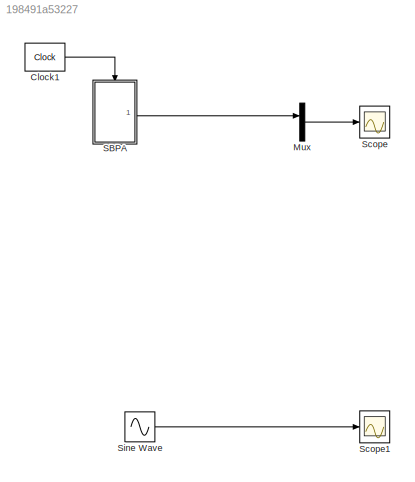
MODEL slx_198491a53227
KIND model
CONFIG AbsTol = auto
CONFIG FixedStep = auto
CONFIG MaxStep = auto
CONFIG MinStep = auto
CONFIG RelTol = 1e-3
CONFIG SampleTimeConstraint = Unconstrained
CONFIG Solver = VariableStepAuto
CONFIG SolverMode = Auto
CONFIG SolverName = VariableStepAuto
CONFIG StartTime = 0.0
CONFIG StopTime = 1
BLOCK [Reference] Clock1  REF=simulink_extras/Flip Flops/Clock
  Ports = [0, 1]
  SourceBlock = simulink_extras/Flip Flops/Clock
  SourceType = Digital clock
BLOCK [Mux] Mux
  DisplayOption = bar
  Inputs = 2
  Ports = [2, 1]
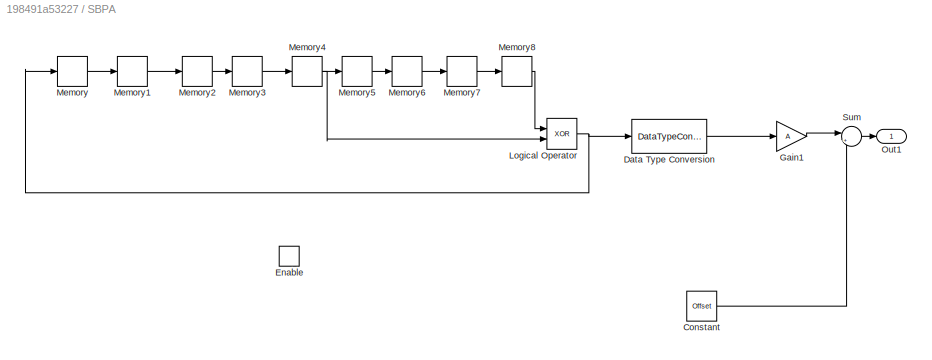
BLOCK [SubSystem] SBPA
  Ports = [0, 1, 1]
  RequestExecContextInheritance = off
  Variant = off
BLOCK [Constant] SBPA/Constant
  Value = Offset
BLOCK [DataTypeConversion] SBPA/Data Type Conversion
  OutDataTypeStr = double
  OutMax = [5]
  OutMin = [0]
  RndMeth = Floor
  SaturateOnIntegerOverflow = off
BLOCK [EnablePort] SBPA/Enable
  Ports = []
BLOCK [Gain] SBPA/Gain1
  Gain = A
  OutDataTypeStr = Inherit: Inherit via internal rule
  ParamDataTypeStr = Inherit: Inherit via internal rule
  SaturateOnIntegerOverflow = off
BLOCK [Logic] SBPA/Logical Operator
  AllPortsSameDT = off
  Operator = XOR
  OutDataTypeStr = boolean
  Ports = [2, 1]
BLOCK [Memory] SBPA/Memory
  InheritSampleTime = on
  X0 = 1
BLOCK [Memory] SBPA/Memory1
  InheritSampleTime = on
BLOCK [Memory] SBPA/Memory2
  InheritSampleTime = on
BLOCK [Memory] SBPA/Memory3
  InheritSampleTime = on
BLOCK [Memory] SBPA/Memory4
  InheritSampleTime = on
BLOCK [Memory] SBPA/Memory5
  InheritSampleTime = on
BLOCK [Memory] SBPA/Memory6
  InheritSampleTime = on
BLOCK [Memory] SBPA/Memory7
  InheritSampleTime = on
BLOCK [Memory] SBPA/Memory8
  InheritSampleTime = on
BLOCK [Outport] SBPA/Out1
  IconDisplay = Port number
BLOCK [Sum] SBPA/Sum
  IconShape = round
  InputSameDT = off
  Inputs = |++
  OutDataTypeStr = Inherit: Inherit via internal rule
  Ports = [2, 1]
  SaturateOnIntegerOverflow = off
BLOCK [Scope] Scope
  Ports = [1]
  ScopeSpecificationString = Simulink.scopes.TimeScopeBlockCfg('CurrentConfiguration', extmgr.ConfigurationSet(extmgr.Configuration('Core','General UI',true),extmgr.Configuration('Core','Source UI',true),extmgr.Configuration('Sources','WiredSimulink',true),extmgr.Configuration('Visuals','Time Domain',true,'SerializedDisplays',{struct('MinYLimReal','-12.5','MaxYLimReal','12.5','YLabelReal','','MinYLimMag','0.00000','MaxYLimMag...<+1415ch>
BLOCK [Scope] Scope1
  Ports = [1]
  ScopeSpecificationString = Simulink.scopes.TimeScopeBlockCfg('CurrentConfiguration', extmgr.ConfigurationSet(extmgr.Configuration('Core','General UI',true),extmgr.Configuration('Core','Source UI',true),extmgr.Configuration('Sources','WiredSimulink',true,'DataLoggingVariableName','ScopeData1'),extmgr.Configuration('Visuals','Time Domain',true,'SerializedDisplays',{struct('MinYLimReal','-12.5','MaxYLimReal','12.5','YLabelReal...<+1447ch>
BLOCK [Sin] Sine Wave
  Amplitude = 10
  Frequency = 6*pi
  Ports = [0, 1]
  SampleTime = Te
LINE Clock1:1 -> SBPA:enable
LINE Mux:1 -> Scope:1
LINE SBPA/Constant:1 -> SBPA/Sum:2
LINE SBPA/Data Type Conversion:1 -> SBPA/Gain1:1
LINE SBPA/Gain1:1 -> SBPA/Sum:1
NET SBPA/Logical Operator:1 -> SBPA/Data Type Conversion:1, SBPA/Memory:1
LINE SBPA/Memory1:1 -> SBPA/Memory2:1
LINE SBPA/Memory2:1 -> SBPA/Memory3:1
LINE SBPA/Memory3:1 -> SBPA/Memory4:1
NET SBPA/Memory4:1 -> SBPA/Logical Operator:2, SBPA/Memory5:1
LINE SBPA/Memory5:1 -> SBPA/Memory6:1
LINE SBPA/Memory6:1 -> SBPA/Memory7:1
LINE SBPA/Memory7:1 -> SBPA/Memory8:1
LINE SBPA/Memory8:1 -> SBPA/Logical Operator:1
LINE SBPA/Memory:1 -> SBPA/Memory1:1
LINE SBPA/Sum:1 -> SBPA/Out1:1
LINE SBPA:1 -> Mux:1
LINE Sine Wave:1 -> Scope1:1
note: NET lines group one-source signal fan-out (src -> all destinations, sorted); 1:1 wires keep LINE
